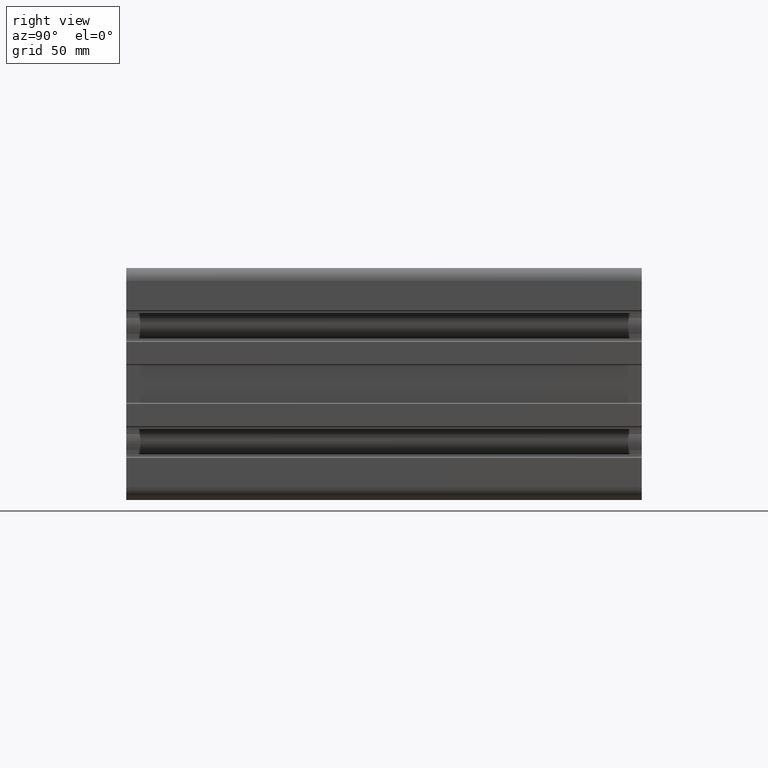
[diagram: clean part render]
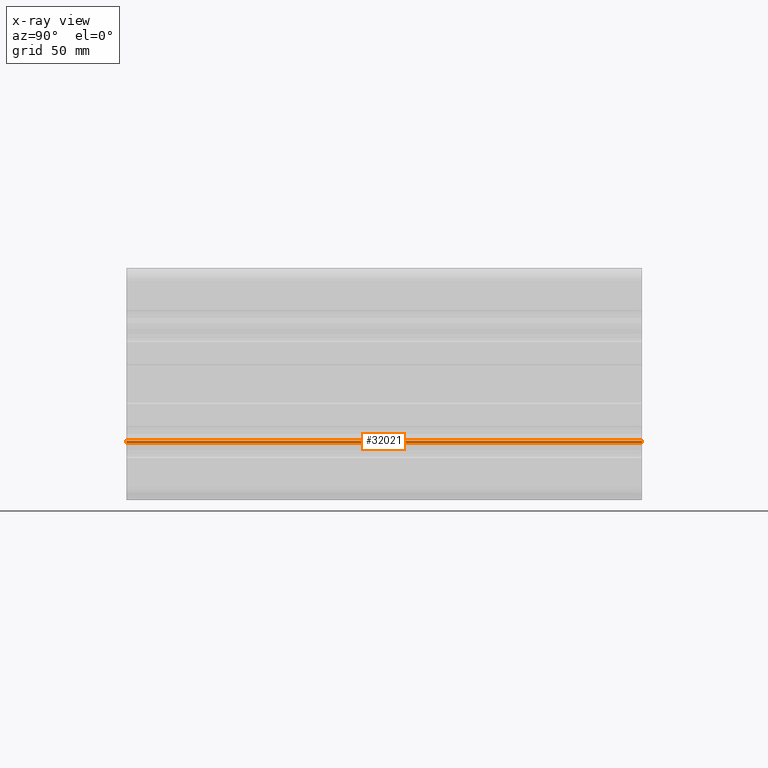
[diagram: x-ray — body ghosted, one internal face saturated and labeled with its STEP entity id]
A machine part, right view, then the same camera in x-ray: the body is ghosted and one INTERNAL B-rep face — a face not visible from any outside direction — is saturated and labeled: STEP entity #32021.
In plain terms, the highlighted cylindrical surface (edge-blend (fillet) strip) has radius 5 mm, axis along (0, 1, 0).
Its self-contained STEP definition (entity closure, byte-faithful):
#1014 = CARTESIAN_POINT ( 'NONE',  ( 72.48258027285555700, 0.0000000000000000000, -22.08299421520699500 ) ) ;
#1470 = CARTESIAN_POINT ( 'NONE',  ( 72.48258027285555700, 200.0000000000000000, -22.91700578479285300 ) ) ;
#2998 = LINE ( 'NONE', #1014, #8216 ) ;
#7595 = ORIENTED_EDGE ( 'NONE', *, *, #9654, .F. ) ;
#8216 = VECTOR ( 'NONE', #21009, 1000.000000000000000 ) ;
#8483 = CARTESIAN_POINT ( 'NONE',  ( 67.50000000000000000, 0.0000000000000000000, -22.50000000000000000 ) ) ;
#8628 = CARTESIAN_POINT ( 'NONE',  ( 72.48258027285557100, 0.0000000000000000000, -22.91700578479279600 ) ) ;
#9067 = AXIS2_PLACEMENT_3D ( 'NONE', #18967, #29300, #16092 ) ;
#9069 = DIRECTION ( 'NONE',  ( 0.0000000000000000000, 1.000000000000000000, 0.0000000000000000000 ) ) ;
#9384 = CYLINDRICAL_SURFACE ( 'NONE', #11436, 5.000000000000000900 ) ;
#9654 = EDGE_CURVE ( 'NONE', #38068, #25674, #31102, .T. ) ;
#11436 = AXIS2_PLACEMENT_3D ( 'NONE', #36653, #16705, #16847 ) ;
#12348 = EDGE_CURVE ( 'NONE', #16297, #19278, #20478, .T. ) ;
#15660 = CARTESIAN_POINT ( 'NONE',  ( 72.48258027285554300, 200.0000000000000000, -22.08299421520695200 ) ) ;
#16092 = DIRECTION ( 'NONE',  ( -5.551115123125781900E-015, 0.0000000000000000000, 1.000000000000000000 ) ) ;
#16297 = VERTEX_POINT ( 'NONE', #18445 ) ;
#16705 = DIRECTION ( 'NONE',  ( 0.0000000000000000000, 1.000000000000000000, 0.0000000000000000000 ) ) ;
#16847 = DIRECTION ( 'NONE',  ( 0.0000000000000000000, 0.0000000000000000000, 1.000000000000000000 ) ) ;
#18445 = CARTESIAN_POINT ( 'NONE',  ( 72.48258027285554300, 0.0000000000000000000, -22.08299421520695200 ) ) ;
#18967 = CARTESIAN_POINT ( 'NONE',  ( 67.50000000000000000, 200.0000000000000000, -22.50000000000000000 ) ) ;
#19278 = VERTEX_POINT ( 'NONE', #37254 ) ;
#20478 = CIRCLE ( 'NONE', #33353, 5.000000000000000900 ) ;
#21009 = DIRECTION ( 'NONE',  ( -0.0000000000000000000, -1.000000000000000000, -0.0000000000000000000 ) ) ;
#21526 = ORIENTED_EDGE ( 'NONE', *, *, #12348, .F. ) ;
#24657 = EDGE_CURVE ( 'NONE', #25674, #16297, #2998, .T. ) ;
#25169 = VECTOR ( 'NONE', #9069, 1000.000000000000000 ) ;
#25674 = VERTEX_POINT ( 'NONE', #15660 ) ;
#26766 = LINE ( 'NONE', #8628, #25169 ) ;
#29275 = EDGE_LOOP ( 'NONE', ( #38885, #21526, #36317, #7595 ) ) ;
#29300 = DIRECTION ( 'NONE',  ( -0.0000000000000000000, -1.000000000000000000, -0.0000000000000000000 ) ) ;
#31102 = CIRCLE ( 'NONE', #9067, 5.000000000000000900 ) ;
#32021 = ADVANCED_FACE ( 'NONE', ( #42211 ), #9384, .F. ) ;
#33353 = AXIS2_PLACEMENT_3D ( 'NONE', #8483, #34361, #41093 ) ;
#34361 = DIRECTION ( 'NONE',  ( 0.0000000000000000000, 1.000000000000000000, 0.0000000000000000000 ) ) ;
#36317 = ORIENTED_EDGE ( 'NONE', *, *, #24657, .F. ) ;
#36653 = CARTESIAN_POINT ( 'NONE',  ( 67.50000000000000000, 0.0000000000000000000, -22.50000000000000000 ) ) ;
#36785 = EDGE_CURVE ( 'NONE', #19278, #38068, #26766, .T. ) ;
#37254 = CARTESIAN_POINT ( 'NONE',  ( 72.48258027285555700, 0.0000000000000000000, -22.91700578479285300 ) ) ;
#38068 = VERTEX_POINT ( 'NONE', #1470 ) ;
#38885 = ORIENTED_EDGE ( 'NONE', *, *, #36785, .F. ) ;
#41093 = DIRECTION ( 'NONE',  ( 0.0000000000000000000, 0.0000000000000000000, 1.000000000000000000 ) ) ;
#42211 = FACE_OUTER_BOUND ( 'NONE', #29275, .T. ) ;